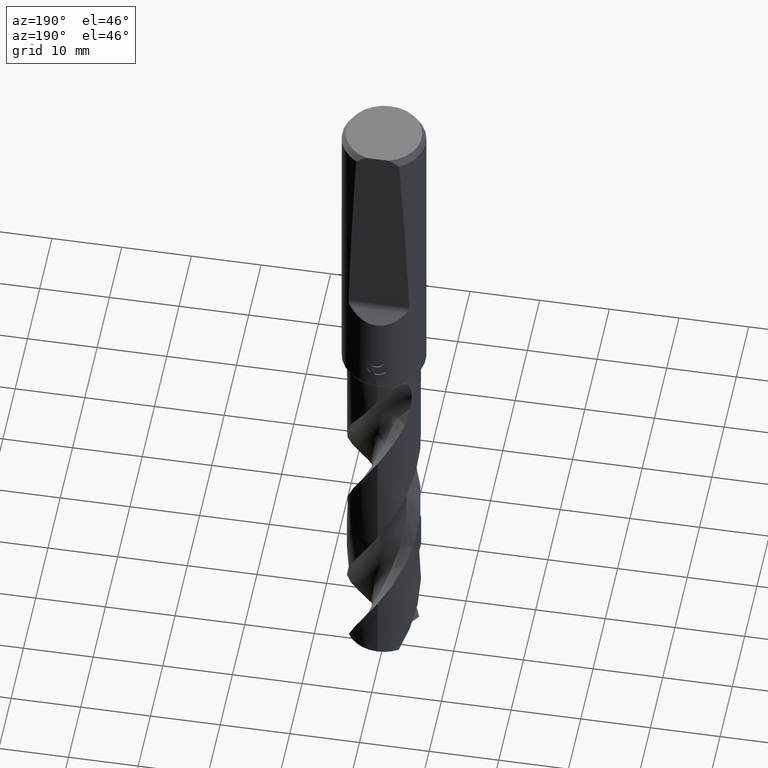
[diagram: clean part render]
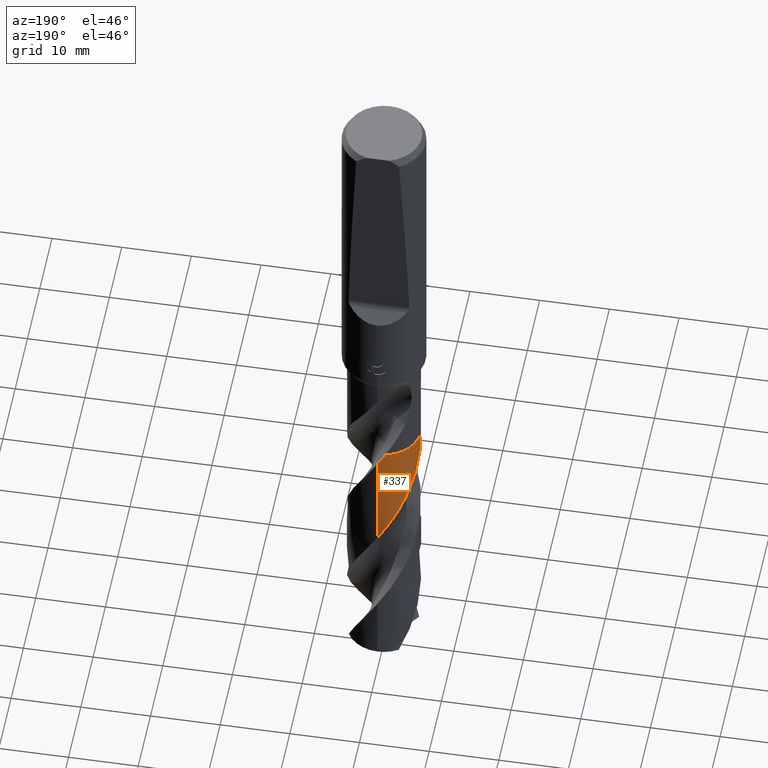
[diagram: same view with one face highlighted and labeled with its STEP entity id]
A machine part, auxiliary view. The second image highlights one B-rep face of the part: STEP entity #337.
In plain terms, the highlighted conical surface has half-angle 0 deg.
Its self-contained STEP definition (entity closure, byte-faithful):
#333=VERTEX_POINT('',#920);
#337=ADVANCED_FACE('',(#924),#925,.T.);
#367=EDGE_CURVE('',#399,#649,#958,.T.);
#399=VERTEX_POINT('',#993);
#487=EDGE_CURVE('',#641,#579,#1091,.T.);
#569=EDGE_CURVE('',#689,#399,#1178,.T.);
#579=VERTEX_POINT('',#1188);
#641=VERTEX_POINT('',#1255);
#649=VERTEX_POINT('',#1264);
#673=EDGE_CURVE('',#579,#333,#1290,.T.);
#689=VERTEX_POINT('',#1308);
#783=EDGE_CURVE('',#333,#689,#1411,.T.);
#851=EDGE_CURVE('',#649,#641,#1486,.T.);
#920=CARTESIAN_POINT('',(-3.99557632968192E-013,5.24994219249677,-76.914615962995));
#924=FACE_OUTER_BOUND('',#1583,.T.);
#925=CONICAL_SURFACE('',#1584,5.24995,2.49444012554929E-006);
#958=CIRCLE('',#1871,5.2499);
#993=CARTESIAN_POINT('',(-5.02106099968185,-1.53310027313085,-60.0));
#1091=B_SPLINE_CURVE_WITH_KNOTS('',3,(#4321,#4322,#4323,#4324,#4325,#4326,#4327,#4328,#4329,#4330,#4331,#4332,#4333,#4334,#4335,#4336,#4337,#4338,#4339,#4340,#4341,#4342,#4343,#4344,#4345,#4346,#4347,#4348,#4349,#4350,#4351,#4352,#4353,#4354,#4355,#4356,#4357,#4358,#4359,#4360,#4361,#4362,#4363,#4364,#4365,#4366,#4367,#4368,#4369,#4370,#4371,#4372,#4373,#4374,#4375,#4376,#4377,#4378,#4379,#4380,#4381,#4382),.UNSPECIFIED.,.F.,.F.,(4,2,2,2,2,2,2,2,2,2,2,2,2,2,2,2,2,2,2,2,2,2,2,2,2,2,2,2,2,2,4),(0.0,1.43060314434761,2.92107774517278,3.93674834978185,4.94065951060769,6.95678050686233,8.971445917565,10.9987850055238,11.4971904237662,13.5058843374096,15.5315992494196,17.5543432889387,18.555593373722,20.5702694084734,22.585986698096,24.6132271326786,25.1111540778835,27.1192364024182,28.1339156774589,28.1998877990165,29.9749145222559,30.9912414681359,31.9428991467248,33.7281285361591,34.5162879964724,35.2510176391117,38.0053058009303,39.0431653431453,40.8664623532238,42.2362278247418,46.3577027559565),.UNSPECIFIED.);
#1178=B_SPLINE_CURVE_WITH_KNOTS('',3,(#6032,#6033,#6034,#6035),.UNSPECIFIED.,.F.,.F.,(4,4),(0.0,0.0130570895807568),.UNSPECIFIED.);
#1188=CARTESIAN_POINT('',(1.27554686887636E-012,5.24990479078902,-61.9205869078802));
#1255=CARTESIAN_POINT('',(-1.10165699910935,5.13301100693042,-60.005));
#1264=CARTESIAN_POINT('',(-1.1044929679948,5.13240151329278,-60.0));
#1290=LINE('',#6934,#6935);
#1308=CARTESIAN_POINT('',(-5.02190616105026,-1.53032960307543,-60.005));
#1411=B_SPLINE_CURVE_WITH_KNOTS('',3,(#7491,#7492,#7493,#7494,#7495,#7496,#7497,#7498,#7499,#7500,#7501,#7502,#7503,#7504,#7505,#7506,#7507,#7508,#7509,#7510,#7511,#7512,#7513,#7514,#7515,#7516,#7517,#7518,#7519,#7520,#7521,#7522,#7523,#7524,#7525,#7526,#7527,#7528,#7529,#7530,#7531,#7532,#7533,#7534,#7535,#7536,#7537,#7538,#7539,#7540,#7541,#7542,#7543,#7544,#7545,#7546,#7547,#7548,#7549,#7550,#7551,#7552),.UNSPECIFIED.,.F.,.F.,(4,2,2,2,2,2,2,2,2,2,2,2,2,2,2,2,2,2,2,2,2,2,2,2,2,2,2,2,2,2,4),(0.0,1.69604232870871,3.95654358310878,5.19424048700817,7.99021996173162,8.06944460139721,10.6110201567379,12.7712613903553,14.6149238411944,14.9937037802023,17.5298628722732,18.9675540739511,20.3103981958802,21.5507102394701,21.5927762917613,24.2844902292219,25.3615338924344,27.9003643143059,28.7134259026979,31.2438126245898,32.2936119003309,34.4539283220425,35.5286100075311,38.260506600375,38.7620579934212,40.5469263383579,41.2682177719664,42.5284914741997,44.4265997278684,44.8999662001482,46.3159475083478),.UNSPECIFIED.);
#1486=B_SPLINE_CURVE_WITH_KNOTS('',3,(#9068,#9069,#9070,#9071),.UNSPECIFIED.,.F.,.F.,(4,4),(0.0,0.010624772227733),.UNSPECIFIED.);
#1583=EDGE_LOOP('',(#9147,#9148,#9149,#9150,#9151,#9152));
#1584=AXIS2_PLACEMENT_3D('',#9153,#9154,#9155);
#1871=AXIS2_PLACEMENT_3D('',#9193,#9194,#9195);
#4321=CARTESIAN_POINT('',(-1.10257892316849,5.13281305100534,-60.0033746492053));
#4322=CARTESIAN_POINT('',(-0.86861842229458,5.18307112902339,-60.4158542572184));
#4323=CARTESIAN_POINT('',(-0.631669564088077,5.21723630956749,-60.8281292312319));
#4324=CARTESIAN_POINT('',(-0.145173968107774,5.25379730945892,-61.6706969493388));
#4325=CARTESIAN_POINT('',(0.104223566283353,5.25478514273103,-62.0998785758849));
#4326=CARTESIAN_POINT('',(0.522371119869458,5.22661463759067,-62.8224039800081));
#4327=CARTESIAN_POINT('',(0.691159495153415,5.20698219590237,-63.1150449852272));
#4328=CARTESIAN_POINT('',(1.02425506400076,5.15175873353739,-63.6973430732481));
#4329=CARTESIAN_POINT('',(1.1883546491983,5.11639465172366,-63.9866475665537));
#4330=CARTESIAN_POINT('',(1.67589446468189,4.98662142502446,-64.8576359252951));
#4331=CARTESIAN_POINT('',(1.9924285836919,4.86882571482156,-65.4379975877334));
#4332=CARTESIAN_POINT('',(2.59855889061615,4.5741221669383,-66.6001796729509));
#4333=CARTESIAN_POINT('',(2.88653335021403,4.39805475654787,-67.1795961847163));
#4334=CARTESIAN_POINT('',(3.42630052820428,3.99210294037433,-68.3453153729092));
#4335=CARTESIAN_POINT('',(3.67678723848025,3.76269077770178,-68.9284167717218));
#4336=CARTESIAN_POINT('',(3.95921017866874,3.44866690390339,-69.6566447961375));
#4337=CARTESIAN_POINT('',(4.01344142142556,3.38540015719886,-69.8003049326701));
#4338=CARTESIAN_POINT('',(4.27850964888112,3.0608494325214,-70.5233243187462));
#4339=CARTESIAN_POINT('',(4.46549720169985,2.78098477827997,-71.1018798717874));
#4340=CARTESIAN_POINT('',(4.7848149411409,2.18678709942591,-72.2653141500851));
#4341=CARTESIAN_POINT('',(4.91585093163865,1.87370819483343,-72.8476612834643));
#4342=CARTESIAN_POINT('',(5.11562782278436,1.22736281989307,-74.0154079114116));
#4343=CARTESIAN_POINT('',(5.18406332311266,0.895408675566907,-74.5974694597076));
#4344=CARTESIAN_POINT('',(5.237919395524,0.392549387298477,-75.4694759488703));
#4345=CARTESIAN_POINT('',(5.24776907040441,0.225356063588984,-75.7579483734713));
#4346=CARTESIAN_POINT('',(5.25334240440934,-0.27866958451985,-76.6278780988956));
#4347=CARTESIAN_POINT('',(5.22466509848285,-0.61505966278611,-77.2079904959933));
#4348=CARTESIAN_POINT('',(5.10315097669487,-1.27805387537637,-78.370341009571));
#4349=CARTESIAN_POINT('',(5.0106010050791,-1.60290788358404,-78.9502549335093));
#4350=CARTESIAN_POINT('',(4.76393678112007,-2.23196645976542,-80.1165084709016));
#4351=CARTESIAN_POINT('',(4.60996274152531,-2.53479844357002,-80.6996819134379));
#4352=CARTESIAN_POINT('',(4.38303823601525,-2.89100723648309,-81.4278960443875));
#4353=CARTESIAN_POINT('',(4.33664046137393,-2.96015098879807,-81.5714494750928));
#4354=CARTESIAN_POINT('',(4.09499231330549,-3.30238888793445,-82.2943111923477));
#4355=CARTESIAN_POINT('',(3.87545559537331,-3.5574810230967,-82.8728289294939));
#4356=CARTESIAN_POINT('',(3.51053161954555,-3.90730531732889,-83.7447230861485));
#4357=CARTESIAN_POINT('',(3.38240060216652,-4.01873771656513,-84.0371375380065));
#4358=CARTESIAN_POINT('',(3.24041498680706,-4.13060773071877,-84.3488192348958));
#4359=CARTESIAN_POINT('',(3.23172527221314,-4.13741003322843,-84.3678473294159));
#4360=CARTESIAN_POINT('',(2.98863460695992,-4.3264681031922,-84.8988951734952));
#4361=CARTESIAN_POINT('',(2.73926006173557,-4.48850406099558,-85.4107244776818));
#4362=CARTESIAN_POINT('',(2.32774537630839,-4.70878117010891,-86.2160952659838));
#4363=CARTESIAN_POINT('',(2.17407098736762,-4.78168071753101,-86.5091001470307));
#4364=CARTESIAN_POINT('',(1.87009797949124,-4.90818106840503,-87.0768114258887));
#4365=CARTESIAN_POINT('',(1.72044188519017,-4.96261744279917,-87.3510359585387));
#4366=CARTESIAN_POINT('',(1.28367224946033,-5.09936227128883,-88.1407353002317));
#4367=CARTESIAN_POINT('',(0.991634675990557,-5.16411020332825,-88.6553760975975));
#4368=CARTESIAN_POINT('',(0.564975256675707,-5.22114967094075,-89.397879880159));
#4369=CARTESIAN_POINT('',(0.433668776524483,-5.23369366810901,-89.6251697912288));
#4370=CARTESIAN_POINT('',(0.17927284592594,-5.24835332834146,-90.0645223631495));
#4371=CARTESIAN_POINT('',(0.056360609515406,-5.25111113134199,-90.2763221759697));
#4372=CARTESIAN_POINT('',(-0.527155593587286,-5.24371977816258,-91.2831272521071));
#4373=CARTESIAN_POINT('',(-0.985194485127229,-5.17727046991577,-92.075463940908));
#4374=CARTESIAN_POINT('',(-1.59584669764657,-5.0045736645214,-93.1696855790059));
#4375=CARTESIAN_POINT('',(-1.76047097632332,-4.94906025270725,-93.4689365427837));
#4376=CARTESIAN_POINT('',(-2.20576548227638,-4.77388032980085,-94.2947224895119));
#4377=CARTESIAN_POINT('',(-2.47936081829906,-4.63769724416718,-94.8201387907609));
#4378=CARTESIAN_POINT('',(-2.93519426272211,-4.35884932231261,-95.7415467055734));
#4379=CARTESIAN_POINT('',(-3.12260968926676,-4.22660371330092,-96.135968950946));
#4380=CARTESIAN_POINT('',(-3.83673332015922,-3.64924412094377,-97.7210865410391));
#4381=CARTESIAN_POINT('',(-4.28251700831304,-3.11425495050583,-98.8997198525398));
#4382=CARTESIAN_POINT('',(-4.6121454575328,-2.50810970225779,-100.089156270102));
#6032=CARTESIAN_POINT('',(-5.02296851035413,-1.52683910412996,-60.0112980855137));
#6033=CARTESIAN_POINT('',(-5.02233399596544,-1.52892648613787,-60.0075320141904));
#6034=CARTESIAN_POINT('',(-5.02169815904665,-1.5310135428787,-60.0037659858993));
#6035=CARTESIAN_POINT('',(-5.02106099968184,-1.53310027313085,-60.0));
#6934=CARTESIAN_POINT('',(-6.42867582083711E-016,5.24995,-80.0445781350512));
#6935=VECTOR('',#9484,1.0);
#7491=CARTESIAN_POINT('',(2.89010516153187,-4.38289768934743,-100.089156270102));
#7492=CARTESIAN_POINT('',(3.12603112540259,-4.22732543861919,-99.5995095141938));
#7493=CARTESIAN_POINT('',(3.34960088208141,-4.05255108849596,-99.1103201904842));
#7494=CARTESIAN_POINT('',(3.83633144128896,-3.60389280596035,-97.9691558231675));
#7495=CARTESIAN_POINT('',(4.08576132975088,-3.31839936671713,-97.3228987482591));
#7496=CARTESIAN_POINT('',(4.42089206042423,-2.83917636891101,-96.3139254676589));
#7497=CARTESIAN_POINT('',(4.52914028707176,-2.66307102781401,-95.9556324796422));
#7498=CARTESIAN_POINT('',(4.84727031825792,-2.06979947928673,-94.7925276953061));
#7499=CARTESIAN_POINT('',(5.01179413904222,-1.6313140540622,-93.9964226340132));
#7500=CARTESIAN_POINT('',(5.11920727973698,-1.16456416567195,-93.1671939121318));
#7501=CARTESIAN_POINT('',(5.12212424386068,-1.1516671663654,-93.1443028494042));
#7502=CARTESIAN_POINT('',(5.21729247471339,-0.723337450839211,-92.384918488574));
#7503=CARTESIAN_POINT('',(5.25884605388225,-0.29788013576161,-91.6564488503287));
#7504=CARTESIAN_POINT('',(5.23952886909664,0.49092013817065,-90.2959245089512));
#7505=CARTESIAN_POINT('',(5.19315433294016,0.851502768849371,-89.6688131021851));
#7506=CARTESIAN_POINT('',(5.03881599222577,1.50613565095665,-88.5103738388283));
#7507=CARTESIAN_POINT('',(4.94132963647757,1.80020163844824,-87.9798236536191));
#7508=CARTESIAN_POINT('',(4.79365668069785,2.14173840756792,-87.3361288943834));
#7509=CARTESIAN_POINT('',(4.76746746890379,2.19941835851738,-87.2263666019686));
#7510=CARTESIAN_POINT('',(4.55762383521428,2.64019122494627,-86.3818740264182));
#7511=CARTESIAN_POINT('',(4.32908155434321,3.0003626433365,-85.6550545816674));
#7512=CARTESIAN_POINT('',(3.90633840183604,3.51578964506488,-84.5050212345239));
#7513=CARTESIAN_POINT('',(3.74087130206784,3.69135949672853,-84.0875431156571));
#7514=CARTESIAN_POINT('',(3.39834040404906,4.00800351722603,-83.2828306583136));
#7515=CARTESIAN_POINT('',(3.22314927858272,4.1502090629955,-82.8954277459808));
#7516=CARTESIAN_POINT('',(2.86935208858344,4.40139214619562,-82.1482152630296));
#7517=CARTESIAN_POINT('',(2.69280805000981,4.51152332550741,-81.7901739682546));
#7518=CARTESIAN_POINT('',(2.50443343516984,4.61409510802959,-81.418693462815));
#7519=CARTESIAN_POINT('',(2.49825187065329,4.61744495906988,-81.4065146514058));
#7520=CARTESIAN_POINT('',(2.09506194540641,4.83488786017291,-80.6131940650877));
#7521=CARTESIAN_POINT('',(1.67176788178228,4.99715821806932,-79.841571776786));
#7522=CARTESIAN_POINT('',(1.05639982158877,5.14574492255758,-78.7495301123541));
#7523=CARTESIAN_POINT('',(0.878710831837537,5.17903213463982,-78.4365662278781));
#7524=CARTESIAN_POINT('',(0.278200726692382,5.25980088016405,-77.3894365401981));
#7525=CARTESIAN_POINT('',(-0.148751444386059,5.26505862245548,-76.662158412315));
#7526=CARTESIAN_POINT('',(-0.707226606622578,5.2038700456833,-75.6919864059717));
#7527=CARTESIAN_POINT('',(-0.84187425274902,5.18378452681881,-75.4561492512359));
#7528=CARTESIAN_POINT('',(-1.3917362940266,5.07979052142207,-74.4888761310249));
#7529=CARTESIAN_POINT('',(-1.79687185880982,4.95102213907876,-73.7646853129868));
#7530=CARTESIAN_POINT('',(-2.34216398773261,4.70180362699203,-72.7295754509978));
#7531=CARTESIAN_POINT('',(-2.49810142584409,4.62083809685775,-72.4252133683623));
#7532=CARTESIAN_POINT('',(-2.96197759572626,4.34962151187067,-71.4971597994968));
#7533=CARTESIAN_POINT('',(-3.2545475603679,4.13528999945302,-70.8775351611139));
#7534=CARTESIAN_POINT('',(-3.65634527729642,3.77163897268049,-69.9428067953674));
#7535=CARTESIAN_POINT('',(-3.78333619270675,3.64421564169123,-69.6314325849074));
#7536=CARTESIAN_POINT('',(-4.20862167359264,3.17135629058413,-68.5322683110097));
#7537=CARTESIAN_POINT('',(-4.46815269941654,2.79380543859316,-67.7531599264289));
#7538=CARTESIAN_POINT('',(-4.71368944354775,2.31295786125578,-66.8197680038241));
#7539=CARTESIAN_POINT('',(-4.74992994893692,2.23758363801149,-66.6748328286726));
#7540=CARTESIAN_POINT('',(-4.90684433909092,1.89024140354439,-66.0153966238246));
#7541=CARTESIAN_POINT('',(-5.00628164359741,1.60870283915593,-65.5034756126743));
#7542=CARTESIAN_POINT('',(-5.1116843678367,1.20283960281995,-64.7817408656452));
#7543=CARTESIAN_POINT('',(-5.13796416833002,1.08509092061746,-64.5741676152617));
#7544=CARTESIAN_POINT('',(-5.19893159318175,0.759617083707684,-64.0032676292905));
#7545=CARTESIAN_POINT('',(-5.22517080723095,0.550748821833633,-63.6391339738907));
#7546=CARTESIAN_POINT('',(-5.25938499126265,0.0250481243044397,-62.729349387214));
#7547=CARTESIAN_POINT('',(-5.25133604281071,-0.292174242742535,-62.1857773187722));
#7548=CARTESIAN_POINT('',(-5.20557288297828,-0.685378718402752,-61.503313465209));
#7549=CARTESIAN_POINT('',(-5.19467673589897,-0.76356887198968,-61.3671180100517));
#7550=CARTESIAN_POINT('',(-5.14423333709174,-1.07423126583697,-60.8230250699551));
#7551=CARTESIAN_POINT('',(-5.09078831110932,-1.30431162624551,-60.412851663695));
#7552=CARTESIAN_POINT('',(-5.02186622742537,-1.53046062628461,-60.0047635599666));
#9068=CARTESIAN_POINT('',(-1.10449296799482,5.13240151329279,-60.0));
#9069=CARTESIAN_POINT('',(-1.10275552968438,5.13277541788854,-60.0030633916594));
#9070=CARTESIAN_POINT('',(-1.10101790830683,5.13314843877547,-60.0061267869439));
#9071=CARTESIAN_POINT('',(-1.09928010455409,5.13352057582639,-60.0091901865111));
#9147=ORIENTED_EDGE('',*,*,#673,.T.);
#9148=ORIENTED_EDGE('',*,*,#783,.T.);
#9149=ORIENTED_EDGE('',*,*,#569,.T.);
#9150=ORIENTED_EDGE('',*,*,#367,.T.);
#9151=ORIENTED_EDGE('',*,*,#851,.T.);
#9152=ORIENTED_EDGE('',*,*,#487,.T.);
#9153=CARTESIAN_POINT('',(0.0,0.0,-80.0445781350512));
#9154=DIRECTION('',(0.0,-0.0,-1.0));
#9155=DIRECTION('',(0.0,1.0,0.0));
#9193=CARTESIAN_POINT('',(0.0,0.0,-60.0));
#9194=DIRECTION('',(0.0,0.0,-1.0));
#9195=DIRECTION('',(0.0,1.0,0.0));
#9484=DIRECTION('',(-3.05470722697398E-022,2.49444012554671E-006,-0.999999999996889));